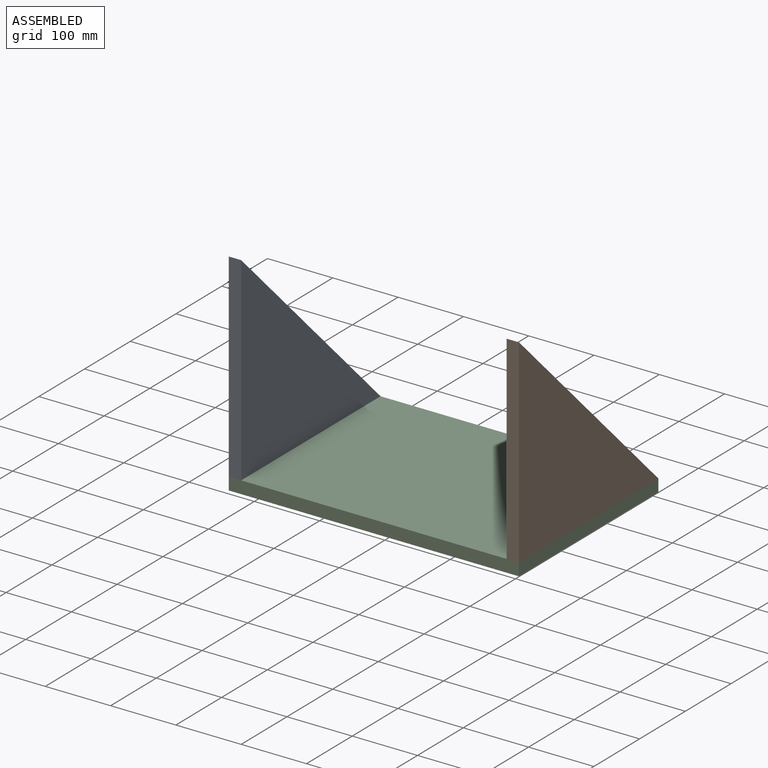
[diagram: assembled view]
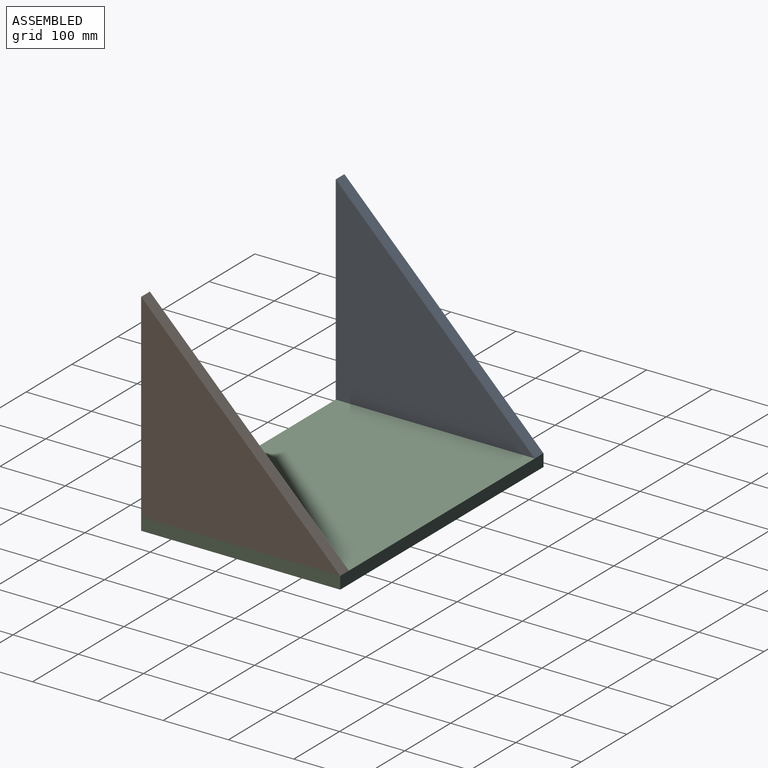
[diagram: assembled view, second angle]
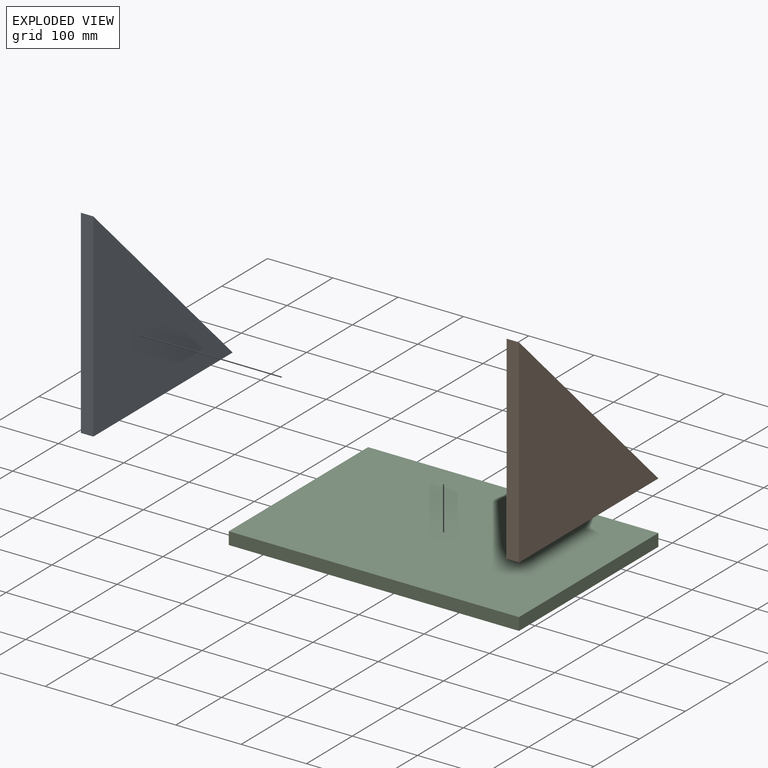
[diagram: exploded view]
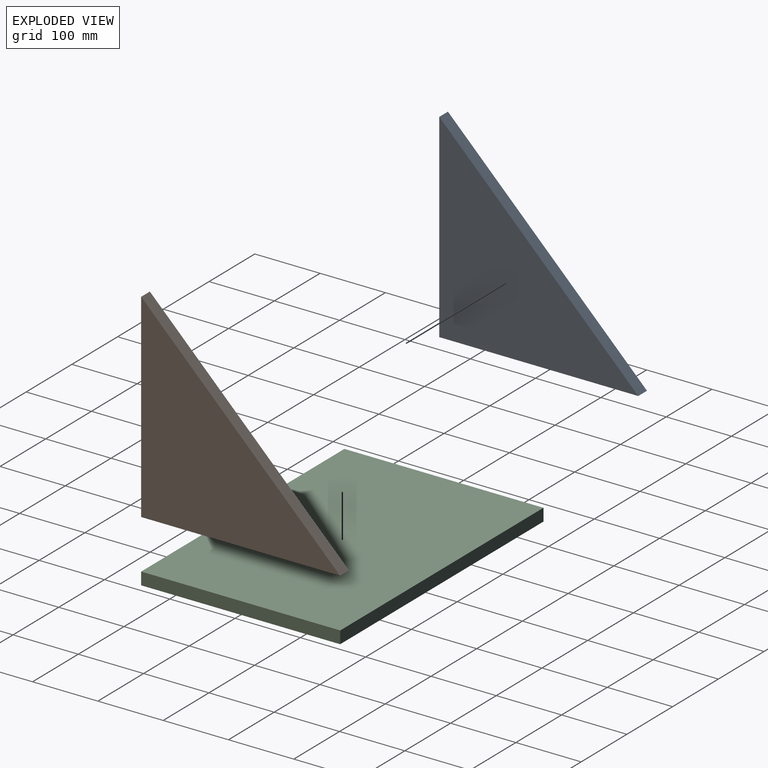
[diagram: exploded view, second angle]
ASSEMBLY  parts=3 mates=2
PART A: 5 faces, bbox 19.1x304.8x304.8 mm
  f0: plane 304.8x19.05mm, normal (0,0,-1), area 5806.4mm2, adj f1,f2,f3,f4
  f1: plane 304.8x304.8mm, normal (0,0.71,0.71), area 8211.5mm2, adj f0,f2,f3,f4
  f2: plane 304.8x19.05mm, normal (0,-1,0), area 5806.4mm2, adj f0,f1,f3,f4
  f3: plane 304.8x304.8mm, normal (1,0,0), area 46451.5mm2, adj f0,f1,f2
  f4: plane 304.8x304.8mm, normal (-1,0,0), area 46451.5mm2, adj f0,f1,f2
PART B: same geometry as A
PART C: 6 faces, bbox 444.5x304.8x19.1 mm
  f0: plane 304.8x19.05mm, normal (-1,0,0), area 5806.4mm2, adj f1,f3,f4,f5
  f1: plane 444.5x19.05mm, normal (0,-1,0), area 8467.7mm2, adj f0,f2,f4,f5
  f2: plane 304.8x19.05mm, normal (1,0,0), area 5806.4mm2, adj f1,f3,f4,f5
  f3: plane 444.5x19.05mm, normal (0,1,0), area 8467.7mm2, adj f0,f2,f4,f5
  f4: plane 444.5x304.8mm, normal (0,0,1), area 135483.6mm2, adj f0,f1,f2,f3
  f5: plane 444.5x304.8mm, normal (0,0,-1), area 135483.6mm2, adj f0,f1,f2,f3
PLACE A t=(-40.49,263.87,19.05)mm
PLACE B t=(384.96,263.87,19.05)mm
PLACE C at identity
MATE fastened A.f4 <-> C.f0  axis (-1,0,0) through (-40.49,-40.93,19.05)mm
MATE fastened B.f3 <-> C.f2  axis (1,0,0) through (404.01,-40.93,19.05)mm
